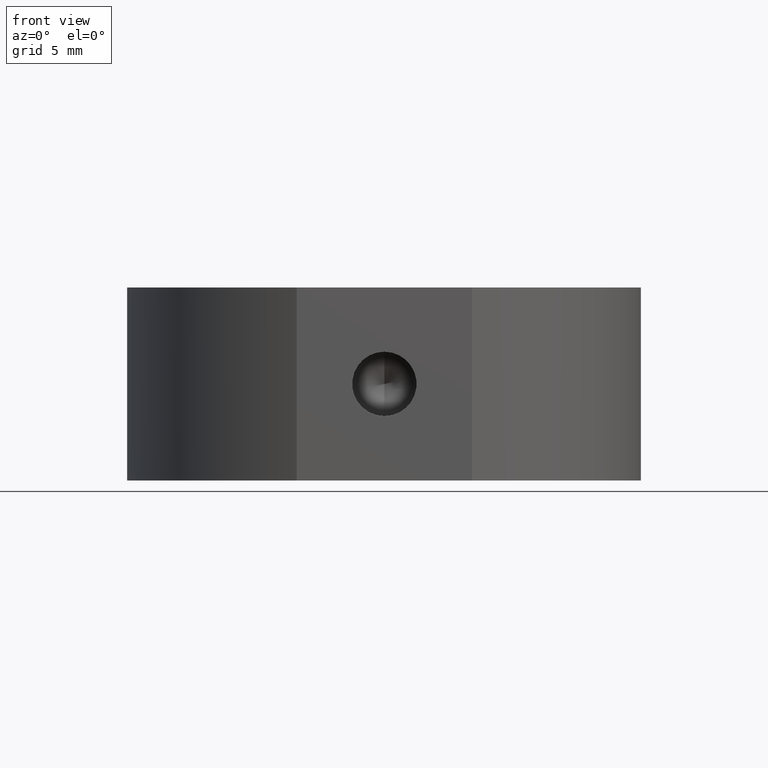
[diagram: clean part render]
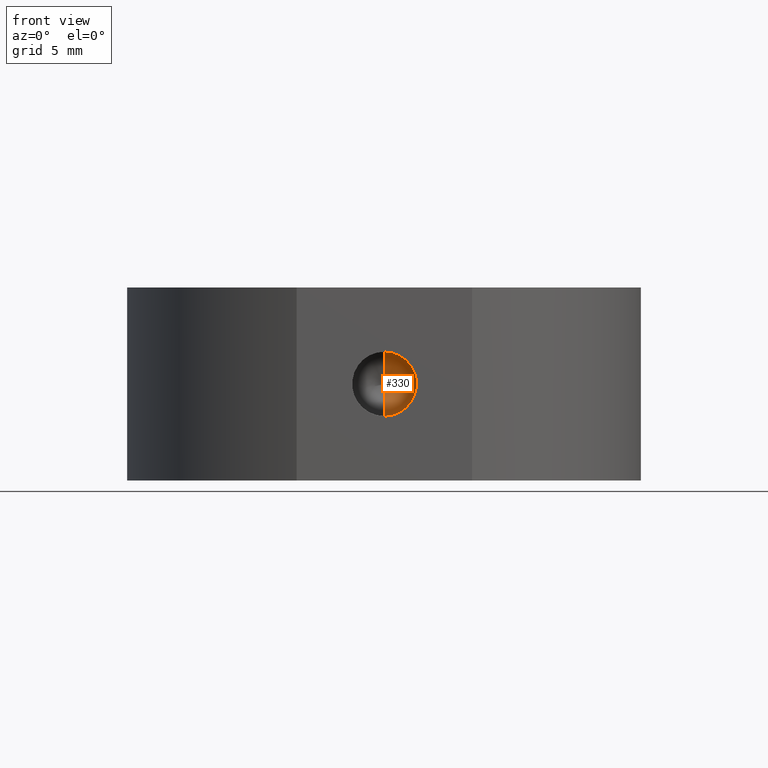
[diagram: same view with one face highlighted and labeled with its STEP entity id]
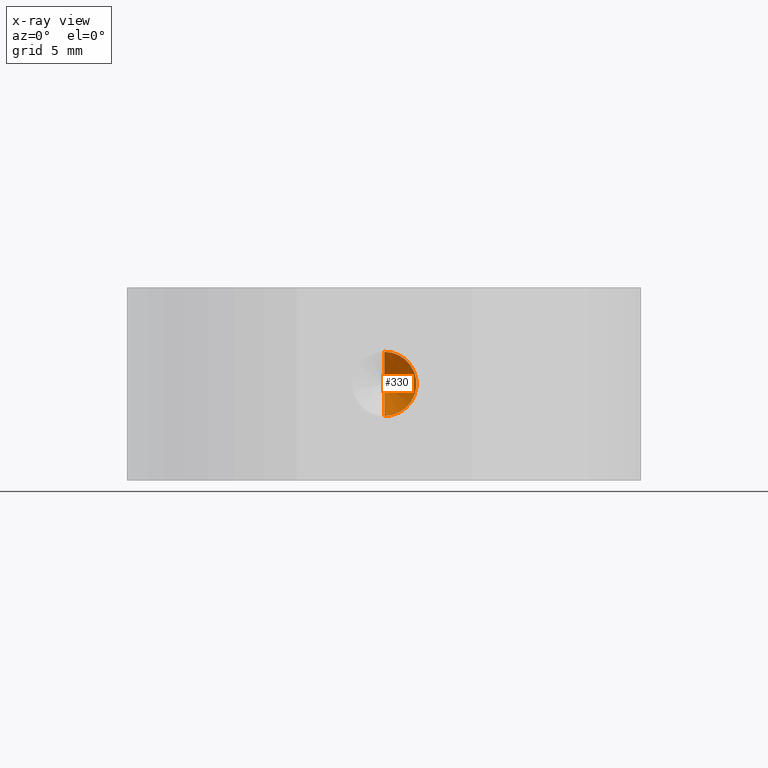
[diagram: x-ray of the same camera — body ghosted, the highlighted face saturated]
A machine part, front view. The second image highlights one B-rep face of the part: STEP entity #330.
The next image is the same camera in x-ray: the body ghosted, the highlighted face saturated — about 0% of this face is hidden behind the body in this view.
In plain terms, the highlighted conical surface has half-angle 59 deg.
Its self-contained STEP definition (entity closure, byte-faithful):
#87 = VECTOR ( 'NONE', #225, 1000.000000000000000 ) ;
#99 = CIRCLE ( 'NONE', #905, 2.499999999999997800 ) ;
#148 = DIRECTION ( 'NONE',  ( 0.0000000000000000000, -0.5150380749100550400, -0.8571673007021117800 ) ) ;
#167 = CARTESIAN_POINT ( 'NONE',  ( 5.204170427930421300E-015, -13.30000000000000100, 0.0000000000000000000 ) ) ;
#187 = FACE_OUTER_BOUND ( 'NONE', #323, .T. ) ;
#225 = DIRECTION ( 'NONE',  ( 1.049727191138618000E-016, -0.5150380749100550400, 0.8571673007021117800 ) ) ;
#301 = CARTESIAN_POINT ( 'NONE',  ( 5.510332127717259900E-015, -13.30000000000000100, 2.499999999999997800 ) ) ;
#306 = CARTESIAN_POINT ( 'NONE',  ( 5.204170427930421300E-015, -13.30000000000000100, -2.499999999999997800 ) ) ;
#322 = EDGE_CURVE ( 'NONE', #679, #343, #900, .T. ) ;
#323 = EDGE_LOOP ( 'NONE', ( #820, #415, #485 ) ) ;
#330 = ADVANCED_FACE ( 'NONE', ( #187 ), #593, .F. ) ;
#343 = VERTEX_POINT ( 'NONE', #306 ) ;
#379 = VERTEX_POINT ( 'NONE', #301 ) ;
#415 = ORIENTED_EDGE ( 'NONE', *, *, #322, .T. ) ;
#465 = AXIS2_PLACEMENT_3D ( 'NONE', #798, #494, #511 ) ;
#485 = ORIENTED_EDGE ( 'NONE', *, *, #759, .T. ) ;
#494 = DIRECTION ( 'NONE',  ( -0.0000000000000000000, -1.000000000000000000, -0.0000000000000000000 ) ) ;
#511 = DIRECTION ( 'NONE',  ( 0.0000000000000000000, 0.0000000000000000000, -1.000000000000000000 ) ) ;
#527 = EDGE_CURVE ( 'NONE', #679, #379, #663, .T. ) ;
#588 = CARTESIAN_POINT ( 'NONE',  ( 5.510332127717259900E-015, -13.30000000000000100, 2.499999999999997800 ) ) ;
#593 = CONICAL_SURFACE ( 'NONE', #465, 2.499999999999997800, 1.029744258676653400 ) ;
#629 = VECTOR ( 'NONE', #148, 1000.000000000000000 ) ;
#635 = CARTESIAN_POINT ( 'NONE',  ( 3.489137931955432100E-015, -11.79784845243109900, 0.0000000000000000000 ) ) ;
#663 = LINE ( 'NONE', #588, #87 ) ;
#679 = VERTEX_POINT ( 'NONE', #635 ) ;
#701 = DIRECTION ( 'NONE',  ( -0.0000000000000000000, -1.000000000000000000, -0.0000000000000000000 ) ) ;
#743 = CARTESIAN_POINT ( 'NONE',  ( 5.204170427930421300E-015, -13.30000000000000100, -2.499999999999997800 ) ) ;
#759 = EDGE_CURVE ( 'NONE', #343, #379, #99, .T. ) ;
#773 = DIRECTION ( 'NONE',  ( 0.0000000000000000000, 0.0000000000000000000, -1.000000000000000000 ) ) ;
#798 = CARTESIAN_POINT ( 'NONE',  ( 5.204170427930421300E-015, -13.30000000000000100, 0.0000000000000000000 ) ) ;
#820 = ORIENTED_EDGE ( 'NONE', *, *, #527, .F. ) ;
#900 = LINE ( 'NONE', #743, #629 ) ;
#905 = AXIS2_PLACEMENT_3D ( 'NONE', #167, #701, #773 ) ;